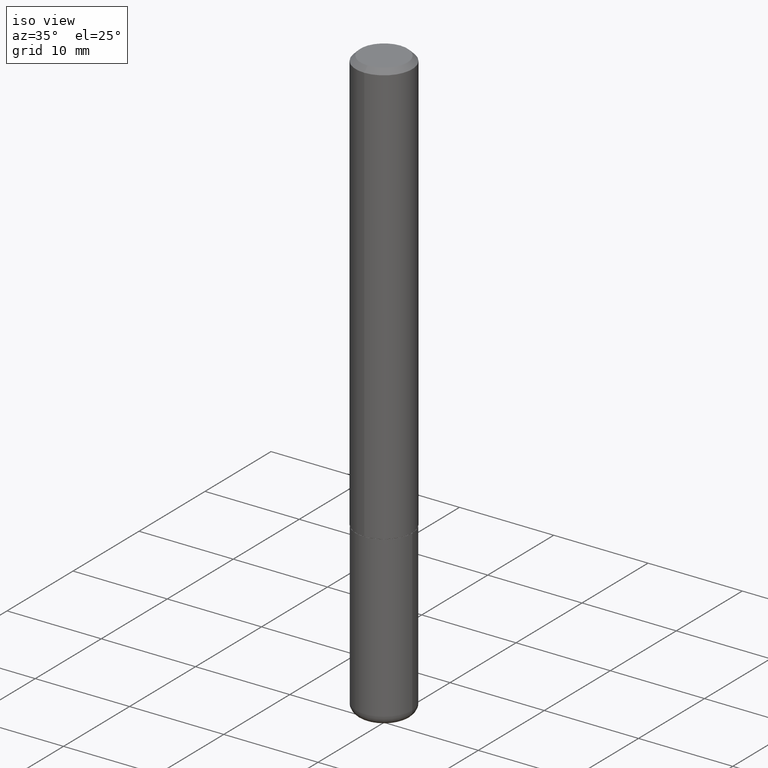
[diagram: clean part render]
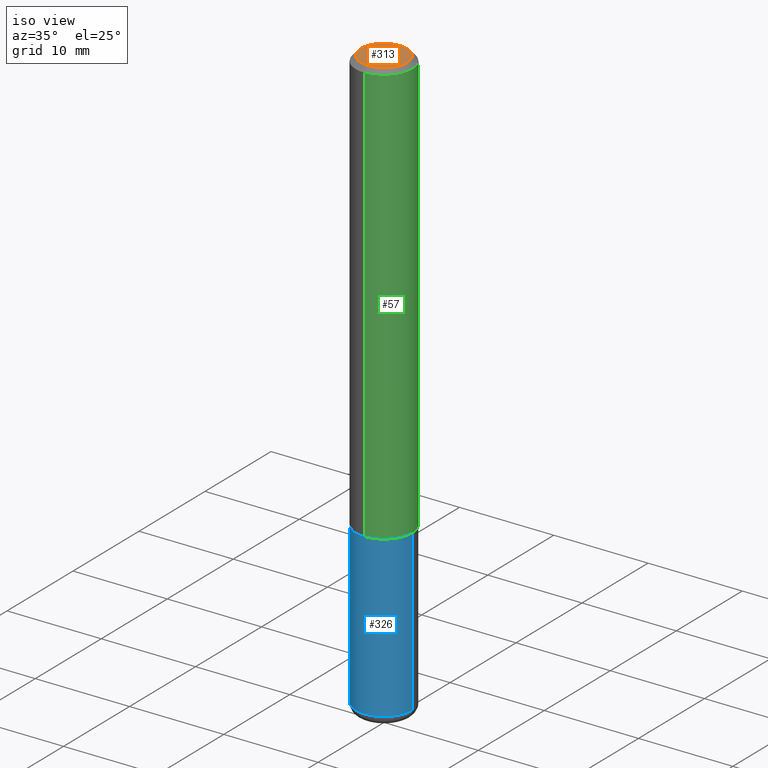
[diagram: same view with three faces highlighted in distinct colors, each labeled with its STEP entity id]
A machine part, iso view with three faces highlighted in distinct colors.
Their STEP definitions:

[orange] entity #313 — the highlighted planar face has unit normal (0, -0, -1).
#14 = CARTESIAN_POINT ( 'NONE',  ( -7.416198335591014190E-16, -0.09809999999999975684, 6.035201542218197439E-16 ) ) ;
#19 = CARTESIAN_POINT ( 'NONE',  ( 6.850286386810209760E-16, 0.09809999999999975684, -2.124813316387448711E-16 ) ) ;
#25 = EDGE_CURVE ( 'NONE', #336, #340, #206, .T. ) ;
#31 = EDGE_LOOP ( 'NONE', ( #299, #144 ) ) ;
#37 = AXIS2_PLACEMENT_3D ( 'NONE', #377, #314, #159 ) ;
#44 = AXIS2_PLACEMENT_3D ( 'NONE', #19, #113, #307 ) ;
#82 = DIRECTION ( 'NONE',  ( -6.982962677686265922E-15, -1.000000000000000000, 3.494674881071397705E-15 ) ) ;
#90 = CARTESIAN_POINT ( 'NONE',  ( 7.548582654578847672E-16, 0.09809999999999975684, -8.213505744438662948E-17 ) ) ;
#99 = PLANE ( 'NONE',  #44 ) ;
#113 = DIRECTION ( 'NONE',  ( 2.443238767566186578E-29, -3.494674881071397310E-15, -1.000000000000000000 ) ) ;
#118 = DIRECTION ( 'NONE',  ( -2.443238767566187138E-29, 3.494674881071396916E-15, 1.000000000000000000 ) ) ;
#120 = CARTESIAN_POINT ( 'NONE',  ( -6.369341406389364514E-45, 9.110357005365375257E-31, 2.606925483887165818E-16 ) ) ;
#140 = CIRCLE ( 'NONE', #37, 0.09809999999999975684 ) ;
#144 = ORIENTED_EDGE ( 'NONE', *, *, #269, .T. ) ;
#159 = DIRECTION ( 'NONE',  ( -6.982962677686265922E-15, -1.000000000000000000, 3.494674881071397705E-15 ) ) ;
#206 = CIRCLE ( 'NONE', #315, 0.09809999999999975684 ) ;
#269 = EDGE_CURVE ( 'NONE', #340, #336, #140, .T. ) ;
#299 = ORIENTED_EDGE ( 'NONE', *, *, #25, .T. ) ;
#307 = DIRECTION ( 'NONE',  ( 6.982962677686265922E-15, 1.000000000000000000, -3.494674881071397310E-15 ) ) ;
#313 = ADVANCED_FACE ( 'NONE', ( #382 ), #99, .F. ) ;
#314 = DIRECTION ( 'NONE',  ( -2.443238767566187138E-29, 3.494674881071396916E-15, 1.000000000000000000 ) ) ;
#315 = AXIS2_PLACEMENT_3D ( 'NONE', #120, #118, #82 ) ;
#336 = VERTEX_POINT ( 'NONE', #90 ) ;
#340 = VERTEX_POINT ( 'NONE', #14 ) ;
#377 = CARTESIAN_POINT ( 'NONE',  ( -6.369341406389364514E-45, 9.110357005365375257E-31, 2.606925483887165818E-16 ) ) ;
#382 = FACE_OUTER_BOUND ( 'NONE', #31, .T. ) ;

[blue] entity #326 — the highlighted cylindrical surface (edge-blend (fillet) strip) has radius 2.9997 mm, axis along (-0, 0, 1).
#1 = ORIENTED_EDGE ( 'NONE', *, *, #328, .F. ) ;
#11 = DIRECTION ( 'NONE',  ( -2.445468806185136597E-29, 3.491481338843145583E-15, 1.000000000000000000 ) ) ;
#45 = CYLINDRICAL_SURFACE ( 'NONE', #103, 0.1180999999999999966 ) ;
#49 = DIRECTION ( 'NONE',  ( 1.000000000000000000, -6.982962677686266711E-15, 4.876176775795936353E-29 ) ) ;
#50 = VERTEX_POINT ( 'NONE', #205 ) ;
#51 = FACE_OUTER_BOUND ( 'NONE', #342, .T. ) ;
#53 = LINE ( 'NONE', #277, #404 ) ;
#64 = LINE ( 'NONE', #387, #202 ) ;
#65 = CARTESIAN_POINT ( 'NONE',  ( 0.1180999999999999966, -7.010196232129265043E-15, -1.771600000000000286 ) ) ;
#72 = ORIENTED_EDGE ( 'NONE', *, *, #321, .T. ) ;
#79 = CARTESIAN_POINT ( 'NONE',  ( 5.969144809017300159E-29, -8.522356799982234543E-15, -2.440900000000000070 ) ) ;
#87 = DIRECTION ( 'NONE',  ( 1.000000000000000000, -6.982962677686265133E-15, 0.000000000000000000 ) ) ;
#103 = AXIS2_PLACEMENT_3D ( 'NONE', #171, #11, #49 ) ;
#127 = CARTESIAN_POINT ( 'NONE',  ( -0.1181000000000000383, -7.683205829049555557E-15, -2.440900000000000070 ) ) ;
#154 = DIRECTION ( 'NONE',  ( -2.445468806185136597E-29, 3.491481338843145583E-15, 1.000000000000000000 ) ) ;
#171 = CARTESIAN_POINT ( 'NONE',  ( 0.000000000000000000, 0.000000000000000000, 0.000000000000000000 ) ) ;
#176 = DIRECTION ( 'NONE',  ( -2.445468806185136877E-29, 3.491481338843145188E-15, 1.000000000000000000 ) ) ;
#199 = VERTEX_POINT ( 'NONE', #65 ) ;
#202 = VECTOR ( 'NONE', #311, 39.37007874015748143 ) ;
#205 = CARTESIAN_POINT ( 'NONE',  ( -0.1180999999999999966, -6.514781599005697070E-15, -1.771600000000000286 ) ) ;
#225 = CARTESIAN_POINT ( 'NONE',  ( 0.1181000000000000383, -9.347044692216982806E-15, -2.440900000000000070 ) ) ;
#238 = DIRECTION ( 'NONE',  ( -2.445468806185136597E-29, 3.491481338843145583E-15, 1.000000000000000000 ) ) ;
#242 = CARTESIAN_POINT ( 'NONE',  ( 4.332392537037588763E-29, -6.185508339894517569E-15, -1.771600000000000286 ) ) ;
#243 = VERTEX_POINT ( 'NONE', #225 ) ;
#267 = ORIENTED_EDGE ( 'NONE', *, *, #414, .F. ) ;
#274 = VERTEX_POINT ( 'NONE', #127 ) ;
#276 = AXIS2_PLACEMENT_3D ( 'NONE', #242, #154, #87 ) ;
#277 = CARTESIAN_POINT ( 'NONE',  ( 0.1180999999999999966, -8.246878922347480654E-16, 5.758764772215000440E-30 ) ) ;
#303 = CIRCLE ( 'NONE', #396, 0.1180999999999999966 ) ;
#309 = CIRCLE ( 'NONE', #276, 0.1180999999999999966 ) ;
#311 = DIRECTION ( 'NONE',  ( -2.445468806185136877E-29, 3.491481338843145188E-15, 1.000000000000000000 ) ) ;
#321 = EDGE_CURVE ( 'NONE', #274, #243, #303, .T. ) ;
#326 = ADVANCED_FACE ( 'NONE', ( #51 ), #45, .T. ) ;
#328 = EDGE_CURVE ( 'NONE', #50, #199, #309, .T. ) ;
#342 = EDGE_LOOP ( 'NONE', ( #267, #72, #388, #1 ) ) ;
#375 = DIRECTION ( 'NONE',  ( 1.000000000000000000, -6.982962677686273021E-15, 0.000000000000000000 ) ) ;
#384 = EDGE_CURVE ( 'NONE', #243, #199, #53, .T. ) ;
#387 = CARTESIAN_POINT ( 'NONE',  ( -0.1180999999999999966, 8.391509709326782957E-16, -5.809262341591043784E-30 ) ) ;
#388 = ORIENTED_EDGE ( 'NONE', *, *, #384, .T. ) ;
#396 = AXIS2_PLACEMENT_3D ( 'NONE', #79, #238, #375 ) ;
#404 = VECTOR ( 'NONE', #176, 39.37007874015748143 ) ;
#414 = EDGE_CURVE ( 'NONE', #274, #50, #64, .T. ) ;

[green] entity #57 — the highlighted cylindrical surface (edge-blend (fillet) strip) has radius 2.9997 mm, axis along (-0, 0, 1).
#13 = EDGE_CURVE ( 'NONE', #284, #355, #306, .T. ) ;
#16 = LINE ( 'NONE', #91, #412 ) ;
#40 = EDGE_CURVE ( 'NONE', #163, #110, #16, .T. ) ;
#43 = AXIS2_PLACEMENT_3D ( 'NONE', #376, #88, #401 ) ;
#57 = ADVANCED_FACE ( 'NONE', ( #271 ), #152, .T. ) ;
#61 = CARTESIAN_POINT ( 'NONE',  ( 4.325998561852691348E-29, -6.187671344425017014E-15, -1.770600000000000174 ) ) ;
#83 = AXIS2_PLACEMENT_3D ( 'NONE', #61, #317, #280 ) ;
#88 = DIRECTION ( 'NONE',  ( -2.443238767566187138E-29, 3.494674881071396916E-15, 1.000000000000000000 ) ) ;
#91 = CARTESIAN_POINT ( 'NONE',  ( -8.246878922347488542E-16, -0.1181000000000001215, 4.127211034545323724E-16 ) ) ;
#109 = ORIENTED_EDGE ( 'NONE', *, *, #234, .F. ) ;
#110 = VERTEX_POINT ( 'NONE', #211 ) ;
#124 = DIRECTION ( 'NONE',  ( -2.443238767566187138E-29, 3.494674881071397310E-15, 1.000000000000000000 ) ) ;
#152 = CYLINDRICAL_SURFACE ( 'NONE', #43, 0.1181000000000001215 ) ;
#155 = DIRECTION ( 'NONE',  ( -2.443238767566187138E-29, 3.494674881071397310E-15, 1.000000000000000000 ) ) ;
#157 = DIRECTION ( 'NONE',  ( -2.443238767566187138E-29, 3.494674881071396916E-15, 1.000000000000000000 ) ) ;
#163 = VERTEX_POINT ( 'NONE', #195 ) ;
#165 = AXIS2_PLACEMENT_3D ( 'NONE', #216, #157, #222 ) ;
#195 = CARTESIAN_POINT ( 'NONE',  ( -8.246878922347063544E-16, -0.1181000000000064221, -1.770599999999999730 ) ) ;
#204 = ORIENTED_EDGE ( 'NONE', *, *, #13, .T. ) ;
#211 = CARTESIAN_POINT ( 'NONE',  ( -8.102248135368172434E-16, -0.1181000000000000660, -0.01999999999999962919 ) ) ;
#213 = EDGE_CURVE ( 'NONE', #163, #284, #325, .T. ) ;
#216 = CARTESIAN_POINT ( 'NONE',  ( 4.886477535132384121E-31, -6.989349762142808870E-17, -0.02000000000000004205 ) ) ;
#222 = DIRECTION ( 'NONE',  ( -6.982962677686265922E-15, -1.000000000000000000, 3.505890868245046092E-15 ) ) ;
#234 = EDGE_CURVE ( 'NONE', #110, #355, #393, .T. ) ;
#245 = ORIENTED_EDGE ( 'NONE', *, *, #213, .T. ) ;
#271 = FACE_OUTER_BOUND ( 'NONE', #286, .T. ) ;
#280 = DIRECTION ( 'NONE',  ( -6.982962677686265922E-15, -1.000000000000000000, 4.626330217890360659E-15 ) ) ;
#284 = VERTEX_POINT ( 'NONE', #418 ) ;
#286 = EDGE_LOOP ( 'NONE', ( #245, #204, #109, #293 ) ) ;
#293 = ORIENTED_EDGE ( 'NONE', *, *, #40, .F. ) ;
#301 = VECTOR ( 'NONE', #155, 39.37007874015748143 ) ;
#306 = LINE ( 'NONE', #368, #301 ) ;
#317 = DIRECTION ( 'NONE',  ( -2.443238767566187138E-29, 3.494674881071396916E-15, 1.000000000000000000 ) ) ;
#325 = CIRCLE ( 'NONE', #83, 0.1181000000000002326 ) ;
#355 = VERTEX_POINT ( 'NONE', #400 ) ;
#368 = CARTESIAN_POINT ( 'NONE',  ( 8.391509709326790846E-16, 0.1181000000000001215, -4.127211034545323724E-16 ) ) ;
#376 = CARTESIAN_POINT ( 'NONE',  ( 0.000000000000000000, 0.000000000000000000, 0.000000000000000000 ) ) ;
#393 = CIRCLE ( 'NONE', #165, 0.1180999999999999966 ) ;
#400 = CARTESIAN_POINT ( 'NONE',  ( 8.246878922347484598E-16, 0.1180999999999999273, -0.02000000000000045838 ) ) ;
#401 = DIRECTION ( 'NONE',  ( -6.982962677686265922E-15, -1.000000000000000000, 3.494674881071396522E-15 ) ) ;
#412 = VECTOR ( 'NONE', #124, 39.37007874015748143 ) ;
#418 = CARTESIAN_POINT ( 'NONE',  ( 8.391509709327014685E-16, 0.1180999999999940708, -1.770600000000000840 ) ) ;